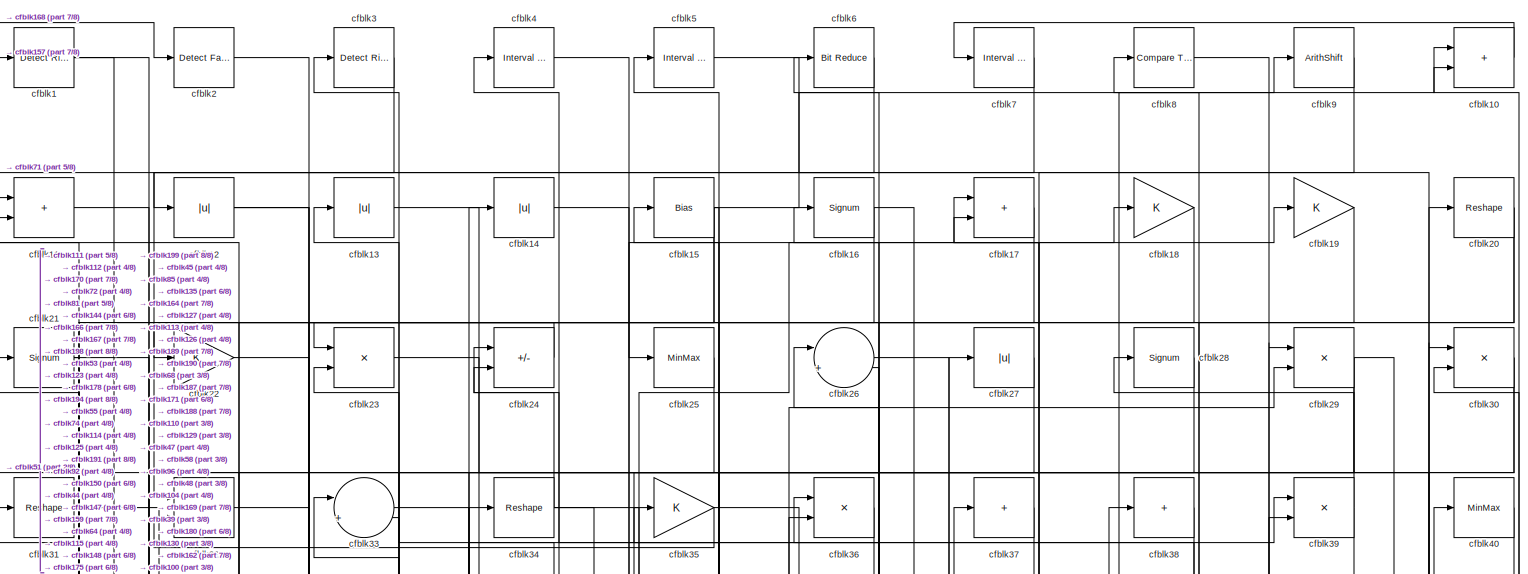
[diagram: root canvas - part 1/8, full width, top band]
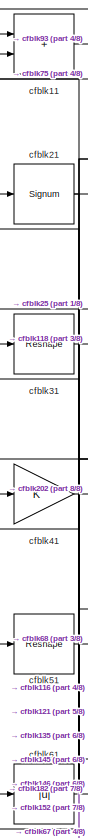
[diagram: root canvas - part 2/8, top left region]
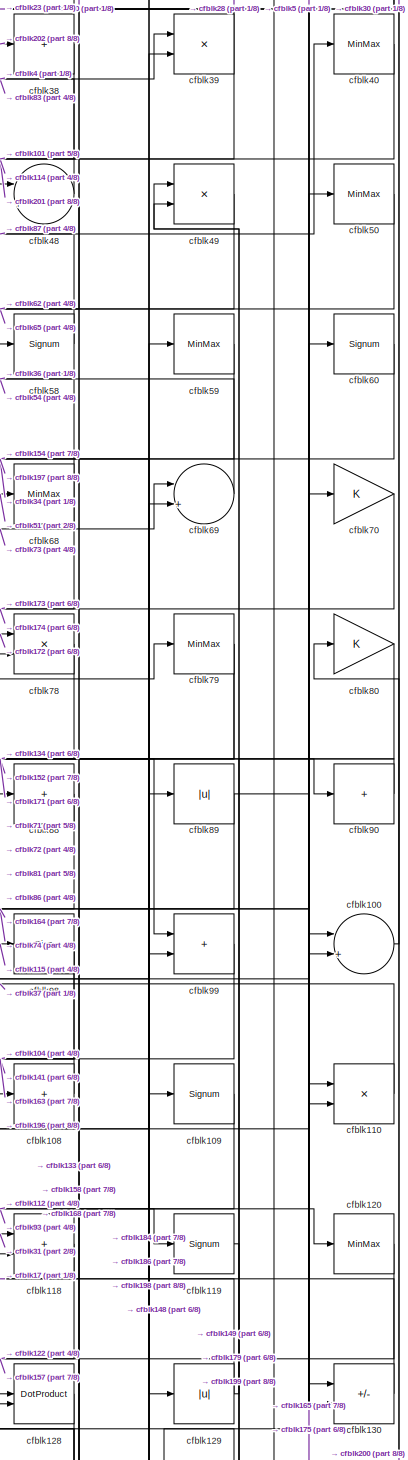
[diagram: root canvas - part 3/8, middle right region]
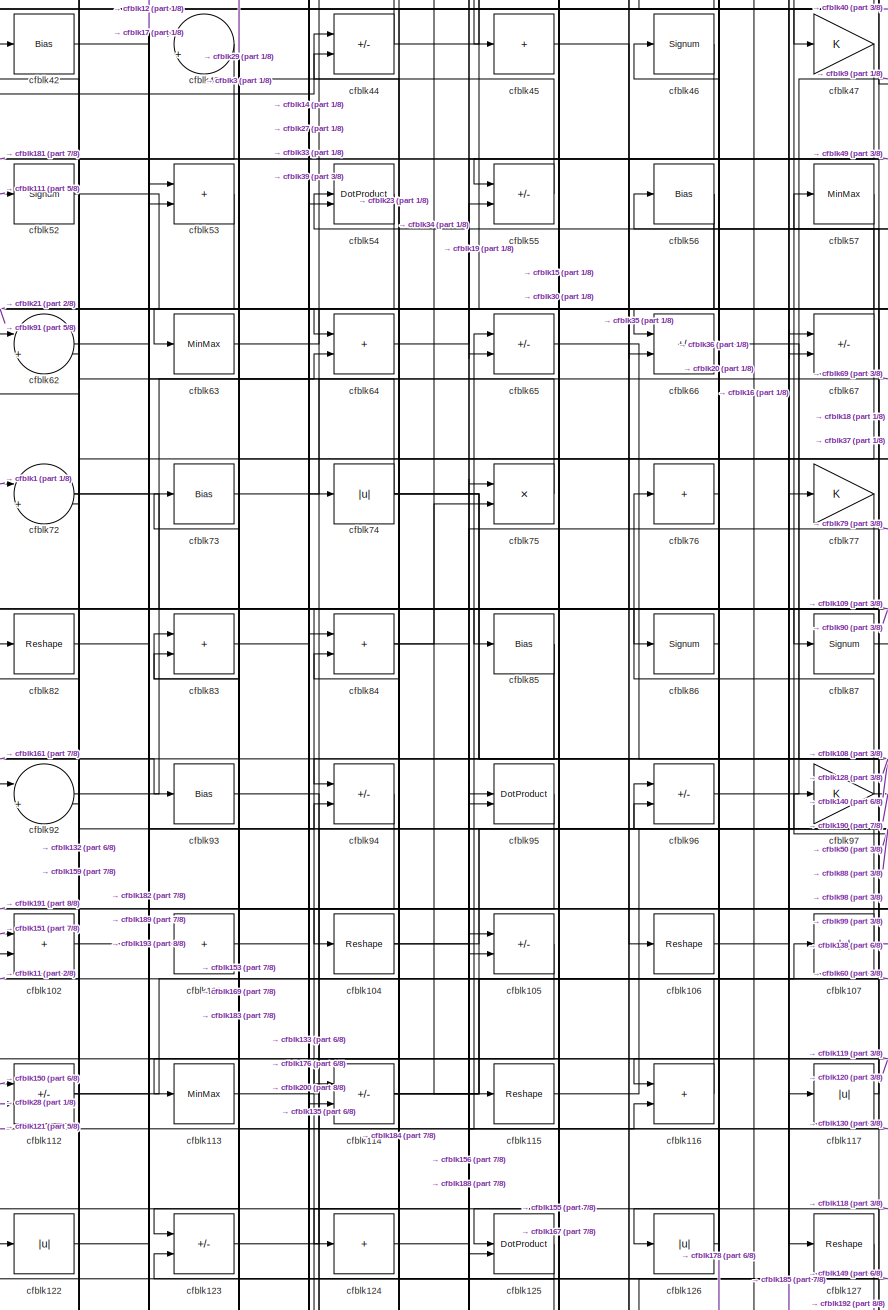
[diagram: root canvas - part 4/8, central region]
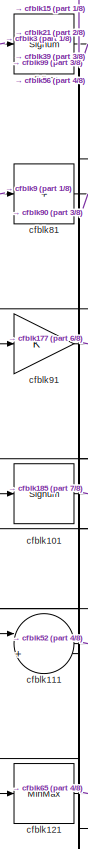
[diagram: root canvas - part 5/8, middle left region]
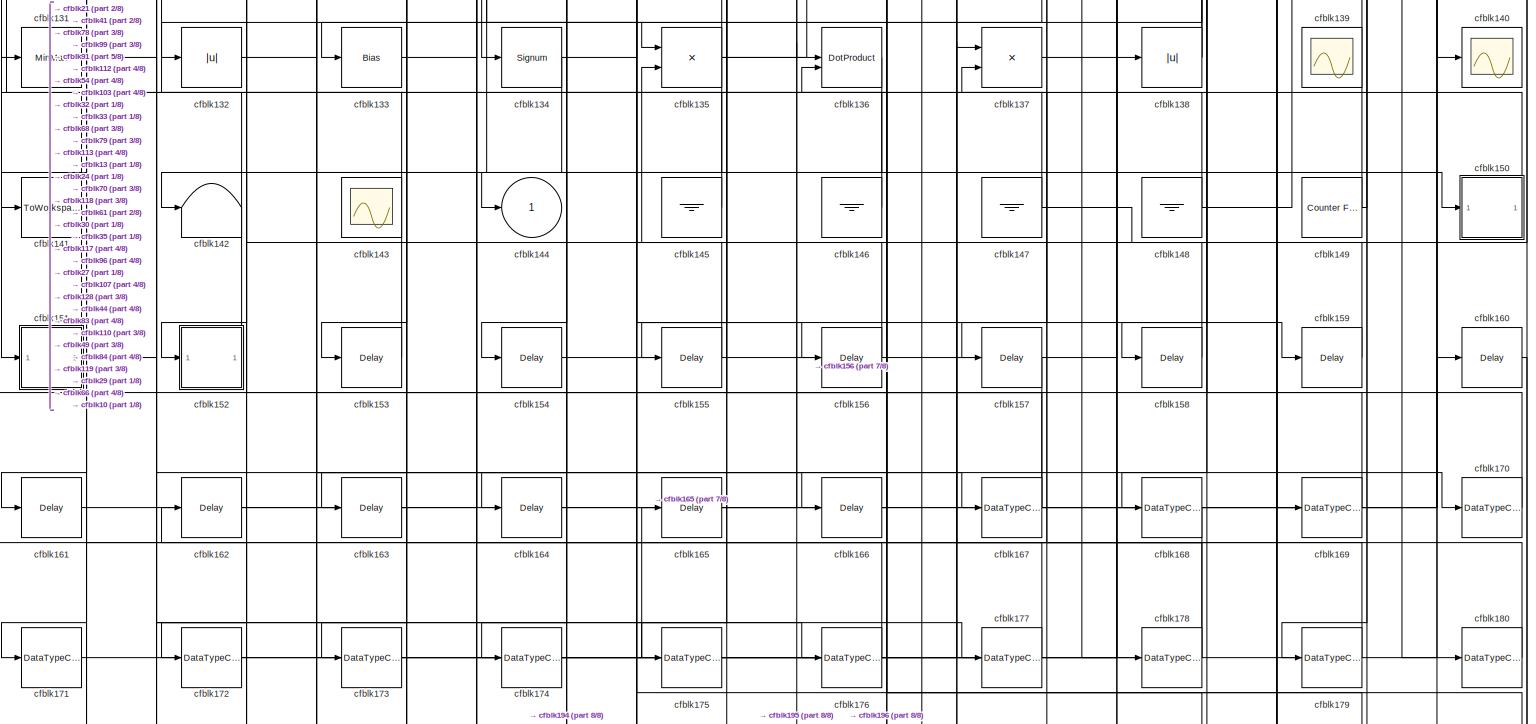
[diagram: root canvas - part 6/8, full width, bottom band]
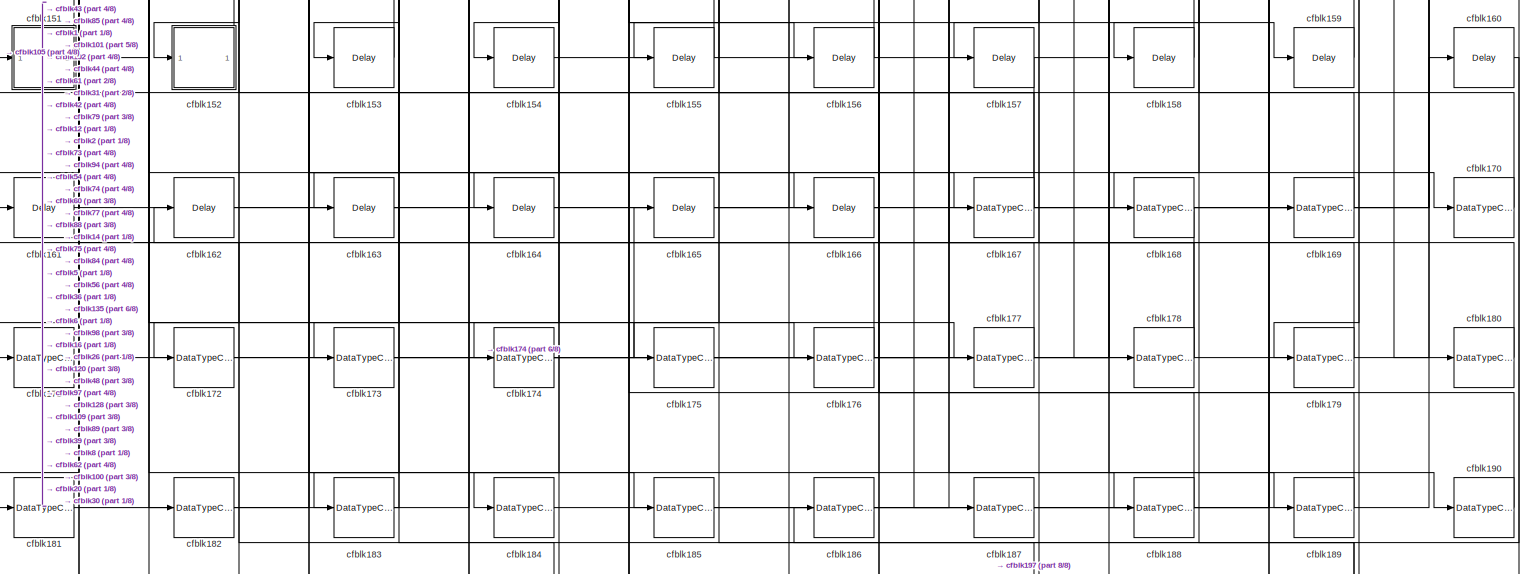
[diagram: root canvas - part 7/8, full width, bottom band]
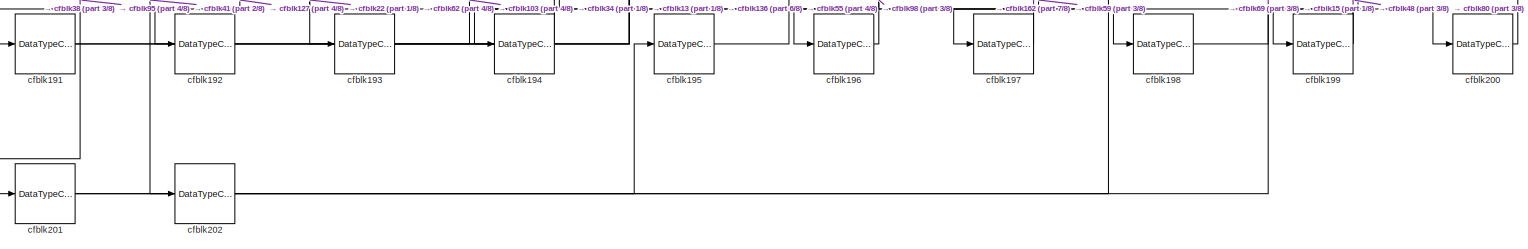
[diagram: root canvas - part 8/8, full width, bottom band]
MODEL slx_3286878df8ca
KIND model
CONFIG AbsTol = auto
CONFIG EnableMultiTasking = off
CONFIG FixedStep = auto
CONFIG MaxStep = auto
CONFIG MinStep = auto
CONFIG RelTol = 1e-3
CONFIG SampleTimeConstraint = Unconstrained
CONFIG SolverName = VariableStepAuto
CONFIG StartTime = 0.0
CONFIG StopTime = 10.0
BLOCK [Reference] cfblk1  REF=hdlsllib/Logic and Bit
Operations/Detect Rise
Nonnegative
  SourceBlock = hdlsllib/Logic and Bit\nOperations/Detect Rise\nNonnegative
  SourceType = Detect Rise Nonnegative
BLOCK [Sum] cfblk10
  IconShape = rectangular
BLOCK [Sum] cfblk100
  Inputs = |++
BLOCK [Signum] cfblk101
BLOCK [Sum] cfblk102
  IconShape = rectangular
BLOCK [Sum] cfblk103
  IconShape = rectangular
  Inputs = +
BLOCK [Reshape] cfblk104
BLOCK [Sum] cfblk105
  IconShape = rectangular
  Inputs = +-
BLOCK [Reshape] cfblk106
BLOCK [Abs] cfblk107
  SaturateOnIntegerOverflow = off
BLOCK [Sum] cfblk108
  IconShape = rectangular
  Inputs = +
BLOCK [Signum] cfblk109
BLOCK [Sum] cfblk11
  IconShape = rectangular
BLOCK [Product] cfblk110
  Inputs = */
  RndMeth = Zero
  SaturateOnIntegerOverflow = on
BLOCK [Sum] cfblk111
  Inputs = |++
BLOCK [Sum] cfblk112
  IconShape = rectangular
  Inputs = +-
BLOCK [MinMax] cfblk113
BLOCK [Sum] cfblk114
  IconShape = rectangular
  Inputs = +-
BLOCK [Reshape] cfblk115
BLOCK [Sum] cfblk116
  IconShape = rectangular
BLOCK [Abs] cfblk117
  SaturateOnIntegerOverflow = off
BLOCK [Sum] cfblk118
  IconShape = rectangular
BLOCK [Signum] cfblk119
BLOCK [Abs] cfblk12
  SaturateOnIntegerOverflow = off
BLOCK [MinMax] cfblk120
BLOCK [MinMax] cfblk121
BLOCK [Abs] cfblk122
  SaturateOnIntegerOverflow = off
BLOCK [Sum] cfblk123
  IconShape = rectangular
  Inputs = +-
BLOCK [Sum] cfblk124
  IconShape = rectangular
  Inputs = +
BLOCK [DotProduct] cfblk125
  OutDataTypeStr = Inherit: Inherit via internal rule
BLOCK [Abs] cfblk126
  SaturateOnIntegerOverflow = off
BLOCK [Reshape] cfblk127
BLOCK [DotProduct] cfblk128
  OutDataTypeStr = Inherit: Inherit via internal rule
BLOCK [Abs] cfblk129
  SaturateOnIntegerOverflow = off
BLOCK [Abs] cfblk13
  SaturateOnIntegerOverflow = off
BLOCK [Sum] cfblk130
  IconShape = rectangular
  Inputs = +-
BLOCK [MinMax] cfblk131
BLOCK [Abs] cfblk132
  SaturateOnIntegerOverflow = off
BLOCK [Bias] cfblk133
  Bias = 0.0
  SaturateOnIntegerOverflow = off
BLOCK [Signum] cfblk134
BLOCK [Product] cfblk135
  Inputs = */
  RndMeth = Zero
  SaturateOnIntegerOverflow = on
BLOCK [DotProduct] cfblk136
  OutDataTypeStr = Inherit: Inherit via internal rule
BLOCK [Product] cfblk137
  Inputs = */
  RndMeth = Zero
  SaturateOnIntegerOverflow = on
BLOCK [Abs] cfblk138
  SaturateOnIntegerOverflow = off
BLOCK [Scope] cfblk139
  Floating = on
  NumInputPorts = 1
  ScopeSpecificationString = Simulink.scopes.TimeScopeBlockCfg('CurrentConfiguration', extmgr.ConfigurationSet(extmgr.Configuration('Core','General UI',true,'FigureColor',[0.156862745098039 0.156862745098039 0.156862745098039]),extmgr.Configuration('Core','Source UI',true),extmgr.Configuration('Sources','WiredSimulink',true,'DataLoggingVariableName','ScopeData1','DataLoggingSaveFormat','StructureWithTime','DataLoggingLimitDat...<+2713ch>
BLOCK [Abs] cfblk14
  SaturateOnIntegerOverflow = off
BLOCK [Scope] cfblk140
  Floating = off
  NumInputPorts = 1
  ScopeSpecificationString = Simulink.scopes.TimeScopeBlockCfg('CurrentConfiguration', extmgr.ConfigurationSet(extmgr.Configuration('Core','General UI',true),extmgr.Configuration('Core','Source UI',true),extmgr.Configuration('Sources','WiredSimulink',true,'DataLoggingVariableName','ScopeData2','DataLoggingSaveFormat','Array','DataLoggingLimitDataPoints',true,'DataLoggingDecimation','1'),extmgr.Configuration('Visuals','Time Do...<+868ch>
BLOCK [ToWorkspace] cfblk141
  MaxDataPoints = inf
  SampleTime = -1
  SaveFormat = Timeseries
  VariableName = simout
BLOCK [Terminator] cfblk142
BLOCK [Scope] cfblk143
  Floating = on
  NumInputPorts = 1
  ScopeSpecificationString = Simulink.scopes.TimeScopeBlockCfg('CurrentConfiguration', extmgr.ConfigurationSet(extmgr.Configuration('Core','General UI',true,'FigureColor',[0.156862745098039 0.156862745098039 0.156862745098039]),extmgr.Configuration('Core','Source UI',true),extmgr.Configuration('Sources','WiredSimulink',true,'DataLoggingVariableName','ScopeData1','DataLoggingSaveFormat','StructureWithTime','DataLoggingLimitDat...<+2713ch>
BLOCK [Outport] cfblk144
  VectorParamsAs1DForOutWhenUnconnected = off
BLOCK [Ground] cfblk145
BLOCK [Ground] cfblk146
BLOCK [Ground] cfblk147
BLOCK [Ground] cfblk148
BLOCK [Reference] cfblk149  REF=hdlsllib/Sources/Counter
Free-Running
  SourceBlock = hdlsllib/Sources/Counter\nFree-Running
  SourceType = Counter Free-Running
BLOCK [Bias] cfblk15
  Bias = 0.0
  SaturateOnIntegerOverflow = off
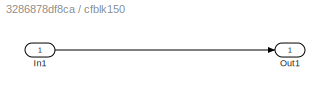
BLOCK [SubSystem] cfblk150
  LibrarySourceBlock = hdlsllib/Ports &\nSubsystems/Subsystem
BLOCK [Inport] cfblk150/In1
BLOCK [Outport] cfblk150/Out1
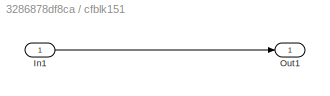
BLOCK [SubSystem] cfblk151
  LibrarySourceBlock = hdlsllib/Ports &\nSubsystems/Subsystem
BLOCK [Inport] cfblk151/In1
BLOCK [Outport] cfblk151/Out1
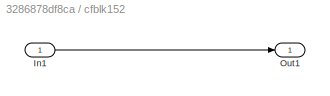
BLOCK [SubSystem] cfblk152
  LibrarySourceBlock = hdlsllib/Ports &\nSubsystems/Subsystem
BLOCK [Inport] cfblk152/In1
BLOCK [Outport] cfblk152/Out1
BLOCK [Delay] cfblk153
  InputPortMap = u0
  SampleTime = 1
BLOCK [Delay] cfblk154
  InputPortMap = u0
  SampleTime = 1
BLOCK [Delay] cfblk155
  InputPortMap = u0
  SampleTime = 1
BLOCK [Delay] cfblk156
  InputPortMap = u0
  SampleTime = 1
BLOCK [Delay] cfblk157
  InputPortMap = u0
  SampleTime = 1
BLOCK [Delay] cfblk158
  InputPortMap = u0
  SampleTime = 1
BLOCK [Delay] cfblk159
  InputPortMap = u0
  SampleTime = 1
BLOCK [Signum] cfblk16
BLOCK [Delay] cfblk160
  InputPortMap = u0
  SampleTime = 1
BLOCK [Delay] cfblk161
  InputPortMap = u0
  SampleTime = 1
BLOCK [Delay] cfblk162
  InputPortMap = u0
  SampleTime = 1
BLOCK [Delay] cfblk163
  InputPortMap = u0
  SampleTime = 1
BLOCK [Delay] cfblk164
  InputPortMap = u0
  SampleTime = 1
BLOCK [Delay] cfblk165
  InputPortMap = u0
  SampleTime = 1
BLOCK [Delay] cfblk166
  InputPortMap = u0
  SampleTime = 1
BLOCK [DataTypeConversion] cfblk167
  RndMeth = Floor
  SaturateOnIntegerOverflow = off
BLOCK [DataTypeConversion] cfblk168
  OutDataTypeStr = uint8
  RndMeth = Floor
  SaturateOnIntegerOverflow = off
BLOCK [DataTypeConversion] cfblk169
  OutDataTypeStr = uint8
  RndMeth = Floor
  SaturateOnIntegerOverflow = off
BLOCK [Sum] cfblk17
  IconShape = rectangular
BLOCK [DataTypeConversion] cfblk170
  OutDataTypeStr = uint8
  RndMeth = Floor
  SaturateOnIntegerOverflow = off
BLOCK [DataTypeConversion] cfblk171
  OutDataTypeStr = uint8
  RndMeth = Floor
  SaturateOnIntegerOverflow = off
BLOCK [DataTypeConversion] cfblk172
  OutDataTypeStr = uint8
  RndMeth = Floor
  SaturateOnIntegerOverflow = off
BLOCK [DataTypeConversion] cfblk173
  OutDataTypeStr = uint8
  RndMeth = Floor
  SaturateOnIntegerOverflow = off
BLOCK [DataTypeConversion] cfblk174
  OutDataTypeStr = uint8
  RndMeth = Floor
  SaturateOnIntegerOverflow = off
BLOCK [DataTypeConversion] cfblk175
  OutDataTypeStr = uint8
  RndMeth = Floor
  SaturateOnIntegerOverflow = off
BLOCK [DataTypeConversion] cfblk176
  OutDataTypeStr = uint8
  RndMeth = Floor
  SaturateOnIntegerOverflow = off
BLOCK [DataTypeConversion] cfblk177
  OutDataTypeStr = uint8
  RndMeth = Floor
  SaturateOnIntegerOverflow = off
BLOCK [DataTypeConversion] cfblk178
  RndMeth = Floor
  SaturateOnIntegerOverflow = off
BLOCK [DataTypeConversion] cfblk179
  OutDataTypeStr = uint8
  RndMeth = Floor
  SaturateOnIntegerOverflow = off
BLOCK [Gain] cfblk18
BLOCK [DataTypeConversion] cfblk180
  OutDataTypeStr = uint8
  RndMeth = Floor
  SaturateOnIntegerOverflow = off
BLOCK [DataTypeConversion] cfblk181
  OutDataTypeStr = uint8
  RndMeth = Floor
  SaturateOnIntegerOverflow = off
BLOCK [DataTypeConversion] cfblk182
  OutDataTypeStr = uint8
  RndMeth = Floor
  SaturateOnIntegerOverflow = off
BLOCK [DataTypeConversion] cfblk183
  OutDataTypeStr = uint8
  RndMeth = Floor
  SaturateOnIntegerOverflow = off
BLOCK [DataTypeConversion] cfblk184
  OutDataTypeStr = uint8
  RndMeth = Floor
  SaturateOnIntegerOverflow = off
BLOCK [DataTypeConversion] cfblk185
  OutDataTypeStr = uint8
  RndMeth = Floor
  SaturateOnIntegerOverflow = off
BLOCK [DataTypeConversion] cfblk186
  OutDataTypeStr = uint8
  RndMeth = Floor
  SaturateOnIntegerOverflow = off
BLOCK [DataTypeConversion] cfblk187
  OutDataTypeStr = uint8
  RndMeth = Floor
  SaturateOnIntegerOverflow = off
BLOCK [DataTypeConversion] cfblk188
  OutDataTypeStr = uint8
  RndMeth = Floor
  SaturateOnIntegerOverflow = off
BLOCK [DataTypeConversion] cfblk189
  OutDataTypeStr = uint8
  RndMeth = Floor
  SaturateOnIntegerOverflow = off
BLOCK [Gain] cfblk19
BLOCK [DataTypeConversion] cfblk190
  OutDataTypeStr = uint8
  RndMeth = Floor
  SaturateOnIntegerOverflow = off
BLOCK [DataTypeConversion] cfblk191
  RndMeth = Floor
  SaturateOnIntegerOverflow = off
BLOCK [DataTypeConversion] cfblk192
  OutDataTypeStr = uint8
  RndMeth = Floor
  SaturateOnIntegerOverflow = off
BLOCK [DataTypeConversion] cfblk193
  OutDataTypeStr = uint8
  RndMeth = Floor
  SaturateOnIntegerOverflow = off
BLOCK [DataTypeConversion] cfblk194
  OutDataTypeStr = uint8
  RndMeth = Floor
  SaturateOnIntegerOverflow = off
BLOCK [DataTypeConversion] cfblk195
  OutDataTypeStr = uint8
  RndMeth = Floor
  SaturateOnIntegerOverflow = off
BLOCK [DataTypeConversion] cfblk196
  OutDataTypeStr = uint8
  RndMeth = Floor
  SaturateOnIntegerOverflow = off
BLOCK [DataTypeConversion] cfblk197
  OutDataTypeStr = uint8
  RndMeth = Floor
  SaturateOnIntegerOverflow = off
BLOCK [DataTypeConversion] cfblk198
  OutDataTypeStr = uint8
  RndMeth = Floor
  SaturateOnIntegerOverflow = off
BLOCK [DataTypeConversion] cfblk199
  RndMeth = Floor
  SaturateOnIntegerOverflow = off
BLOCK [Reference] cfblk2  REF=hdlsllib/Logic and Bit
Operations/Detect Fall
Negative
  SourceBlock = hdlsllib/Logic and Bit\nOperations/Detect Fall\nNegative
  SourceType = Detect Fall Negative
BLOCK [Reshape] cfblk20
BLOCK [DataTypeConversion] cfblk200
  OutDataTypeStr = uint8
  RndMeth = Floor
  SaturateOnIntegerOverflow = off
BLOCK [DataTypeConversion] cfblk201
  RndMeth = Floor
  SaturateOnIntegerOverflow = off
BLOCK [DataTypeConversion] cfblk202
  OutDataTypeStr = uint8
  RndMeth = Floor
  SaturateOnIntegerOverflow = off
BLOCK [Signum] cfblk21
BLOCK [Gain] cfblk22
BLOCK [Product] cfblk23
  Inputs = */
  RndMeth = Zero
  SaturateOnIntegerOverflow = on
BLOCK [Sum] cfblk24
  IconShape = rectangular
  Inputs = +-
BLOCK [MinMax] cfblk25
BLOCK [Sum] cfblk26
  Inputs = |++
BLOCK [Abs] cfblk27
  SaturateOnIntegerOverflow = off
BLOCK [Signum] cfblk28
BLOCK [Product] cfblk29
  Inputs = */
  RndMeth = Zero
  SaturateOnIntegerOverflow = on
BLOCK [Reference] cfblk3  REF=hdlsllib/Logic and Bit
Operations/Detect Rise
Nonnegative
  SourceBlock = hdlsllib/Logic and Bit\nOperations/Detect Rise\nNonnegative
  SourceType = Detect Rise Nonnegative
BLOCK [Product] cfblk30
  Inputs = */
  RndMeth = Zero
  SaturateOnIntegerOverflow = on
BLOCK [Reshape] cfblk31
BLOCK [Product] cfblk32
  Inputs = */
  RndMeth = Zero
  SaturateOnIntegerOverflow = on
BLOCK [Sum] cfblk33
  Inputs = |++
BLOCK [Reshape] cfblk34
BLOCK [Gain] cfblk35
BLOCK [Product] cfblk36
  Inputs = */
  RndMeth = Zero
  SaturateOnIntegerOverflow = on
BLOCK [Sum] cfblk37
  IconShape = rectangular
  Inputs = +
BLOCK [Sum] cfblk38
  IconShape = rectangular
  Inputs = +
BLOCK [Product] cfblk39
  Inputs = */
  RndMeth = Zero
  SaturateOnIntegerOverflow = on
BLOCK [Reference] cfblk4  REF=hdlsllib/Logic and Bit
Operations/Interval Test
  SourceBlock = hdlsllib/Logic and Bit\nOperations/Interval Test
  SourceType = Interval Test
BLOCK [MinMax] cfblk40
BLOCK [Gain] cfblk41
BLOCK [Bias] cfblk42
  Bias = 0.0
  SaturateOnIntegerOverflow = off
BLOCK [Sum] cfblk43
  Inputs = |++
BLOCK [Sum] cfblk44
  IconShape = rectangular
  Inputs = +-
BLOCK [Sum] cfblk45
  IconShape = rectangular
  Inputs = +
BLOCK [Signum] cfblk46
BLOCK [Gain] cfblk47
BLOCK [Sum] cfblk48
  Inputs = |++
BLOCK [Product] cfblk49
  Inputs = */
  RndMeth = Zero
  SaturateOnIntegerOverflow = on
BLOCK [Reference] cfblk5  REF=hdlsllib/Logic and Bit
Operations/Interval Test
  SourceBlock = hdlsllib/Logic and Bit\nOperations/Interval Test
  SourceType = Interval Test
BLOCK [MinMax] cfblk50
BLOCK [Reshape] cfblk51
BLOCK [Signum] cfblk52
BLOCK [Sum] cfblk53
  IconShape = rectangular
BLOCK [DotProduct] cfblk54
  OutDataTypeStr = Inherit: Inherit via internal rule
BLOCK [Sum] cfblk55
  IconShape = rectangular
  Inputs = +-
BLOCK [Bias] cfblk56
  Bias = 0.0
  SaturateOnIntegerOverflow = off
BLOCK [MinMax] cfblk57
BLOCK [Signum] cfblk58
BLOCK [MinMax] cfblk59
BLOCK [Reference] cfblk6  REF=hdlsllib/Logic and Bit
Operations/Bit Reduce
  SourceBlock = hdlsllib/Logic and Bit\nOperations/Bit Reduce
  SourceType = Bit Reduce
BLOCK [Signum] cfblk60
BLOCK [Abs] cfblk61
  SaturateOnIntegerOverflow = off
BLOCK [Sum] cfblk62
  Inputs = |++
BLOCK [MinMax] cfblk63
BLOCK [Sum] cfblk64
  IconShape = rectangular
BLOCK [Sum] cfblk65
  IconShape = rectangular
  Inputs = +-
BLOCK [Sum] cfblk66
  IconShape = rectangular
  Inputs = +-
BLOCK [Sum] cfblk67
  IconShape = rectangular
  Inputs = +-
BLOCK [MinMax] cfblk68
BLOCK [Sum] cfblk69
  Inputs = |++
BLOCK [Reference] cfblk7  REF=hdlsllib/Logic and Bit
Operations/Interval Test
  SourceBlock = hdlsllib/Logic and Bit\nOperations/Interval Test
  SourceType = Interval Test
BLOCK [Gain] cfblk70
BLOCK [Signum] cfblk71
BLOCK [Sum] cfblk72
  Inputs = |++
BLOCK [Bias] cfblk73
  Bias = 0.0
  SaturateOnIntegerOverflow = off
BLOCK [Abs] cfblk74
  SaturateOnIntegerOverflow = off
BLOCK [Product] cfblk75
  Inputs = */
  RndMeth = Zero
  SaturateOnIntegerOverflow = on
BLOCK [Sum] cfblk76
  IconShape = rectangular
  Inputs = +
BLOCK [Gain] cfblk77
BLOCK [Product] cfblk78
  Inputs = */
  RndMeth = Zero
  SaturateOnIntegerOverflow = on
BLOCK [MinMax] cfblk79
BLOCK [Reference] cfblk8  REF=hdlsllib/Logic and Bit
Operations/Compare
To Zero
  SourceBlock = hdlsllib/Logic and Bit\nOperations/Compare\nTo Zero
  SourceType = Compare To Zero
BLOCK [Gain] cfblk80
BLOCK [Sum] cfblk81
  IconShape = rectangular
  Inputs = +
BLOCK [Reshape] cfblk82
BLOCK [Sum] cfblk83
  IconShape = rectangular
BLOCK [Sum] cfblk84
  IconShape = rectangular
BLOCK [Bias] cfblk85
  Bias = 0.0
  SaturateOnIntegerOverflow = off
BLOCK [Signum] cfblk86
BLOCK [Signum] cfblk87
BLOCK [Sum] cfblk88
  IconShape = rectangular
  Inputs = +
BLOCK [Abs] cfblk89
  SaturateOnIntegerOverflow = off
BLOCK [ArithShift] cfblk9
  BitShiftNumber = 8
  InputPortMap = u0
BLOCK [Sum] cfblk90
  IconShape = rectangular
  Inputs = +
BLOCK [Gain] cfblk91
BLOCK [Sum] cfblk92
  Inputs = |++
BLOCK [Bias] cfblk93
  Bias = 0.0
  SaturateOnIntegerOverflow = off
BLOCK [Sum] cfblk94
  IconShape = rectangular
  Inputs = +-
BLOCK [DotProduct] cfblk95
  OutDataTypeStr = Inherit: Inherit via internal rule
BLOCK [Sum] cfblk96
  IconShape = rectangular
  Inputs = +-
BLOCK [Gain] cfblk97
BLOCK [Bias] cfblk98
  Bias = 0.0
  SaturateOnIntegerOverflow = off
BLOCK [Sum] cfblk99
  IconShape = rectangular
LINE cfblk100:1 -> cfblk30:2
LINE cfblk101:1 -> cfblk185:1
LINE cfblk102:1 -> cfblk94:2
LINE cfblk103:1 -> cfblk200:1
NET cfblk104:1 -> cfblk29:1, cfblk79:1
LINE cfblk105:1 -> cfblk151:1
LINE cfblk106:1 -> cfblk67:1
NET cfblk107:1 -> cfblk138:1, cfblk82:1
LINE cfblk108:1 -> cfblk104:1
LINE cfblk109:1 -> cfblk168:1
LINE cfblk10:1 -> cfblk7:1
LINE cfblk110:1 -> cfblk37:1
LINE cfblk111:1 -> cfblk52:1
NET cfblk112:1 -> cfblk119:1, cfblk60:1
LINE cfblk113:1 -> cfblk135:1
NET cfblk114:1 -> cfblk50:1, cfblk88:1, cfblk99:2
LINE cfblk115:1 -> cfblk98:1
LINE cfblk116:1 -> cfblk11:1
LINE cfblk117:1 -> cfblk57:1
LINE cfblk118:1 -> cfblk122:1
LINE cfblk119:1 -> cfblk179:1
LINE cfblk11:1 -> cfblk93:1
LINE cfblk120:1 -> cfblk157:1
LINE cfblk121:1 -> cfblk65:1
LINE cfblk122:1 -> cfblk97:1
LINE cfblk123:1 -> cfblk96:1
LINE cfblk124:1 -> cfblk116:2
LINE cfblk125:1 -> cfblk123:2
LINE cfblk126:1 -> cfblk16:1
LINE cfblk127:1 -> cfblk192:1
LINE cfblk128:1 -> cfblk133:1
NET cfblk129:1 -> cfblk17:1, cfblk49:1
NET cfblk12:1 -> cfblk166:1, cfblk53:1
LINE cfblk130:1 -> cfblk83:2
LINE cfblk131:1 -> cfblk176:1
LINE cfblk132:1 -> cfblk103:1
LINE cfblk133:1 -> cfblk107:1
NET cfblk134:1 -> cfblk118:2, cfblk142:1
NET cfblk135:1 -> cfblk117:1, cfblk172:1, cfblk29:2, cfblk61:1
LINE cfblk136:1 -> cfblk194:1
LINE cfblk137:1 -> cfblk178:1
NET cfblk138:1 -> cfblk44:1, cfblk83:1
LINE cfblk13:1 -> cfblk150:1
LINE cfblk145:1 -> cfblk21:1
LINE cfblk146:1 -> cfblk41:1
NET cfblk147:1 -> cfblk10:1, cfblk24:2
NET cfblk148:1 -> cfblk110:1, cfblk35:1
NET cfblk149:1 -> cfblk49:2, cfblk84:2
LINE cfblk14:1 -> cfblk159:1
LINE cfblk150/In1:1 -> cfblk150/Out1:1
LINE cfblk150:1 -> cfblk112:1
LINE cfblk151/In1:1 -> cfblk151/Out1:1
NET cfblk151:1 -> cfblk102:1, cfblk44:2
LINE cfblk152/In1:1 -> cfblk152/Out1:1
LINE cfblk152:1 -> cfblk31:1
LINE cfblk153:1 -> cfblk102:2
LINE cfblk154:1 -> cfblk48:1
LINE cfblk155:1 -> cfblk105:1
LINE cfblk156:1 -> cfblk135:2
LINE cfblk157:1 -> cfblk1:1
LINE cfblk158:1 -> cfblk128:1
LINE cfblk159:1 -> cfblk62:1
NET cfblk15:1 -> cfblk10:2, cfblk111:1, cfblk111:2, cfblk55:1
LINE cfblk160:1 -> cfblk186:1
LINE cfblk161:1 -> cfblk54:2
LINE cfblk162:1 -> cfblk30:1
LINE cfblk163:1 -> cfblk183:1
LINE cfblk164:1 -> cfblk36:2
LINE cfblk165:1 -> cfblk100:1
LINE cfblk166:1 -> cfblk6:1
NET cfblk167:1 -> cfblk20:1, cfblk42:1, cfblk5:1
LINE cfblk168:1 -> cfblk2:1
LINE cfblk169:1 -> cfblk73:1
NET cfblk16:1 -> cfblk187:1, cfblk85:1
LINE cfblk170:1 -> cfblk8:1
LINE cfblk171:1 -> cfblk27:1
LINE cfblk172:1 -> cfblk78:1
LINE cfblk173:1 -> cfblk78:2
LINE cfblk174:1 -> cfblk165:1
LINE cfblk175:1 -> cfblk70:1
LINE cfblk176:1 -> cfblk84:1
LINE cfblk177:1 -> cfblk131:1
NET cfblk178:1 -> cfblk33:1, cfblk96:2
LINE cfblk179:1 -> cfblk137:1
LINE cfblk17:1 -> cfblk53:2
LINE cfblk180:1 -> cfblk137:2
LINE cfblk181:1 -> cfblk74:1
LINE cfblk182:1 -> cfblk43:1
LINE cfblk183:1 -> cfblk43:2
LINE cfblk184:1 -> cfblk89:1
LINE cfblk185:1 -> cfblk77:1
LINE cfblk186:1 -> cfblk39:2
LINE cfblk187:1 -> cfblk160:1
LINE cfblk188:1 -> cfblk75:1
LINE cfblk189:1 -> cfblk26:1
LINE cfblk18:1 -> cfblk47:1
LINE cfblk190:1 -> cfblk26:2
NET cfblk191:1 -> cfblk34:1, cfblk55:2
LINE cfblk192:1 -> cfblk95:1
LINE cfblk193:1 -> cfblk95:2
LINE cfblk194:1 -> cfblk13:1
LINE cfblk195:1 -> cfblk136:1
LINE cfblk196:1 -> cfblk136:2
LINE cfblk197:1 -> cfblk162:1
LINE cfblk198:1 -> cfblk59:1
NET cfblk199:1 -> cfblk15:1, cfblk48:2
LINE cfblk19:1 -> cfblk23:1
NET cfblk1:1 -> cfblk170:1, cfblk72:1
LINE cfblk200:1 -> cfblk80:1
NET cfblk201:1 -> cfblk195:1, cfblk69:2
LINE cfblk202:1 -> cfblk38:1
NET cfblk20:1 -> cfblk126:1, cfblk58:1
NET cfblk21:1 -> cfblk121:1, cfblk67:2
LINE cfblk22:1 -> cfblk198:1
LINE cfblk23:1 -> cfblk130:1
LINE cfblk24:1 -> cfblk22:1
LINE cfblk25:1 -> cfblk51:1
LINE cfblk26:1 -> cfblk188:1
LINE cfblk27:1 -> cfblk114:2
LINE cfblk28:1 -> cfblk112:2
NET cfblk29:1 -> cfblk123:1, cfblk180:1, cfblk72:2
LINE cfblk2:1 -> cfblk167:1
NET cfblk30:1 -> cfblk175:1, cfblk45:1
LINE cfblk31:1 -> cfblk118:1
LINE cfblk32:1 -> cfblk144:1
LINE cfblk33:1 -> cfblk125:2
NET cfblk34:1 -> cfblk115:1, cfblk129:1, cfblk24:1
NET cfblk35:1 -> cfblk127:1, cfblk32:2
LINE cfblk36:1 -> cfblk113:1
LINE cfblk37:1 -> cfblk92:1
LINE cfblk38:1 -> cfblk201:1
NET cfblk39:1 -> cfblk101:1, cfblk28:1
LINE cfblk3:1 -> cfblk71:1
LINE cfblk40:1 -> cfblk114:1
LINE cfblk41:1 -> cfblk202:1
LINE cfblk42:1 -> cfblk189:1
LINE cfblk43:1 -> cfblk181:1
NET cfblk44:1 -> cfblk19:1, cfblk23:2
LINE cfblk45:1 -> cfblk87:1
LINE cfblk46:1 -> cfblk125:1
LINE cfblk47:1 -> cfblk66:2
LINE cfblk48:1 -> cfblk4:1
LINE cfblk49:1 -> cfblk65:2
LINE cfblk4:1 -> cfblk25:1
LINE cfblk50:1 -> cfblk62:2
LINE cfblk51:1 -> cfblk68:1
LINE cfblk52:1 -> cfblk64:1
LINE cfblk53:1 -> cfblk63:1
LINE cfblk54:1 -> cfblk132:1
LINE cfblk55:1 -> cfblk3:1
NET cfblk56:1 -> cfblk155:1, cfblk91:1
LINE cfblk57:1 -> cfblk124:1
LINE cfblk58:1 -> cfblk17:2
LINE cfblk59:1 -> cfblk197:1
LINE cfblk5:1 -> cfblk110:2
LINE cfblk60:1 -> cfblk154:1
LINE cfblk61:1 -> cfblk182:1
LINE cfblk62:1 -> cfblk193:1
LINE cfblk63:1 -> cfblk66:1
LINE cfblk64:1 -> cfblk18:1
LINE cfblk65:1 -> cfblk108:1
LINE cfblk66:1 -> cfblk140:1
NET cfblk67:1 -> cfblk46:1, cfblk92:2
NET cfblk68:1 -> cfblk173:1, cfblk36:1
LINE cfblk69:1 -> cfblk54:1
LINE cfblk6:1 -> cfblk12:1
LINE cfblk70:1 -> cfblk174:1
LINE cfblk71:1 -> cfblk99:1
NET cfblk72:1 -> cfblk109:1, cfblk64:2
LINE cfblk73:1 -> cfblk69:1
NET cfblk74:1 -> cfblk106:1, cfblk128:2, cfblk130:2, cfblk33:2
LINE cfblk75:1 -> cfblk11:2
LINE cfblk76:1 -> cfblk116:1
LINE cfblk77:1 -> cfblk184:1
LINE cfblk78:1 -> cfblk171:1
NET cfblk79:1 -> cfblk134:1, cfblk152:1
LINE cfblk7:1 -> cfblk32:1
LINE cfblk80:1 -> cfblk199:1
LINE cfblk81:1 -> cfblk90:1
LINE cfblk82:1 -> cfblk105:2
LINE cfblk83:1 -> cfblk39:1
NET cfblk84:1 -> cfblk156:1, cfblk75:2
NET cfblk85:1 -> cfblk161:1, cfblk94:1
LINE cfblk86:1 -> cfblk56:1
LINE cfblk87:1 -> cfblk40:1
LINE cfblk88:1 -> cfblk164:1
NET cfblk89:1 -> cfblk100:2, cfblk158:1
LINE cfblk8:1 -> cfblk169:1
LINE cfblk90:1 -> cfblk86:1
LINE cfblk91:1 -> cfblk177:1
LINE cfblk92:1 -> cfblk14:1
LINE cfblk93:1 -> cfblk120:1
LINE cfblk94:1 -> cfblk153:1
LINE cfblk95:1 -> cfblk191:1
LINE cfblk96:1 -> cfblk9:1
NET cfblk97:1 -> cfblk190:1, cfblk76:1
NET cfblk98:1 -> cfblk163:1, cfblk196:1
LINE cfblk99:1 -> cfblk141:1
LINE cfblk9:1 -> cfblk81:1
note: NET lines group one-source signal fan-out (src -> all destinations, sorted); 1:1 wires keep LINE
